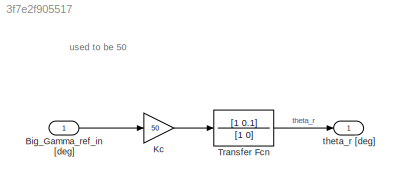
MODEL slx_3f7e2f905517
KIND model
CONFIG AbsTol = auto
CONFIG EnableMultiTasking = off
CONFIG FixedStep = auto
CONFIG MaxStep = auto
CONFIG MinStep = auto
CONFIG RelTol = 1e-3
CONFIG SampleTimeConstraint = Unconstrained
CONFIG SolverName = VariableStepAuto
CONFIG StartTime = 0.0
CONFIG StopTime = 10.0
BLOCK [Inport] Big_Gamma_ref_in [deg]
BLOCK [Gain] Kc
  Gain = 50
BLOCK [TransferFcn] Transfer Fcn
  Denominator = [1 0]
  Numerator = [1 0.1]
BLOCK [Outport] theta_r [deg]
  SignalName = Theta reference
ANNOTATION (root): used to be 50
LINE Big_Gamma_ref_in [deg]:1 -> Kc:1
LINE Kc:1 -> Transfer Fcn:1
LINE Transfer Fcn:1 -> theta_r [deg]:1
